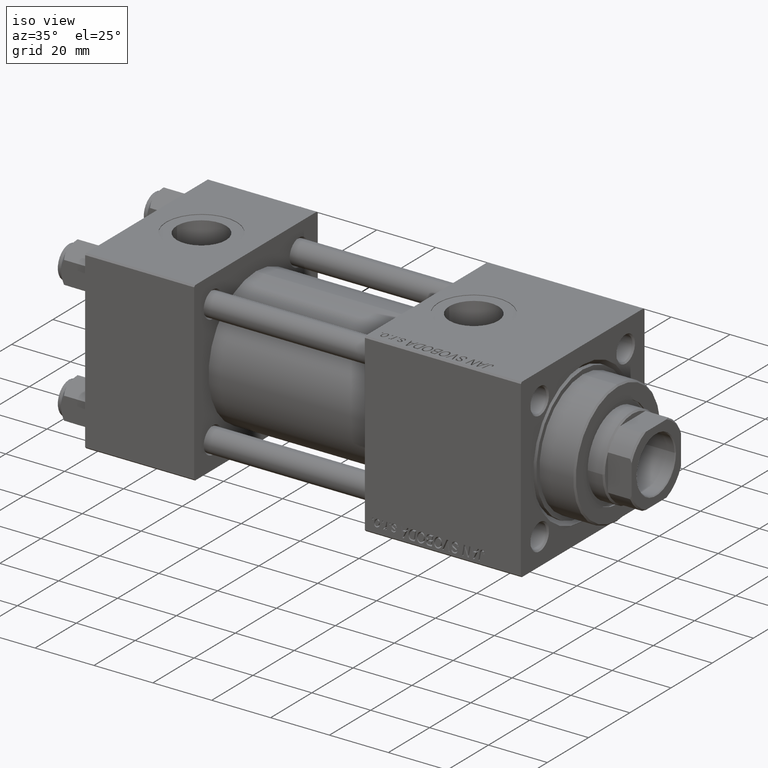
[diagram: clean part render]
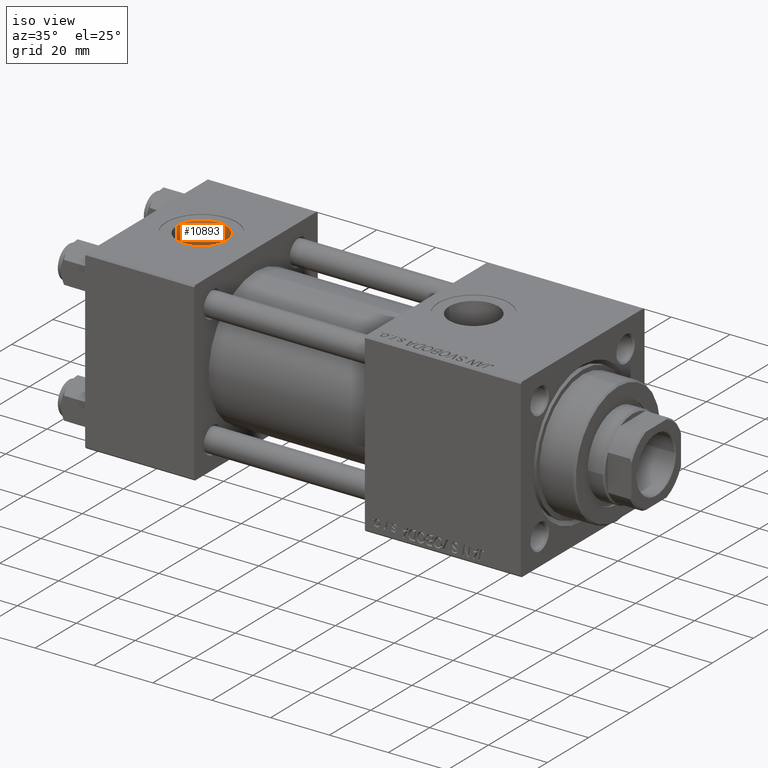
[diagram: same view with one face highlighted and labeled with its STEP entity id]
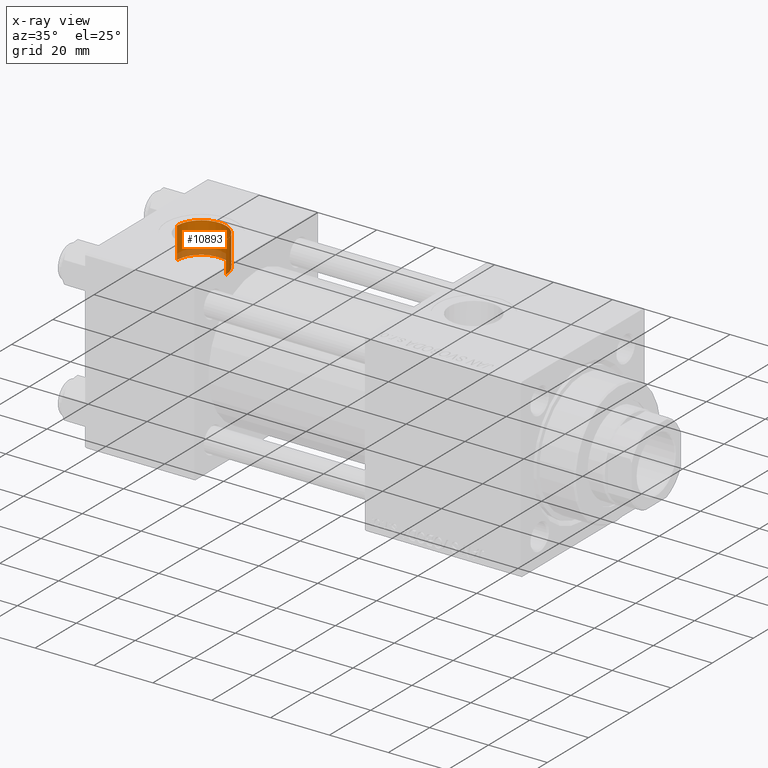
[diagram: x-ray of the same camera — body ghosted, the highlighted face saturated]
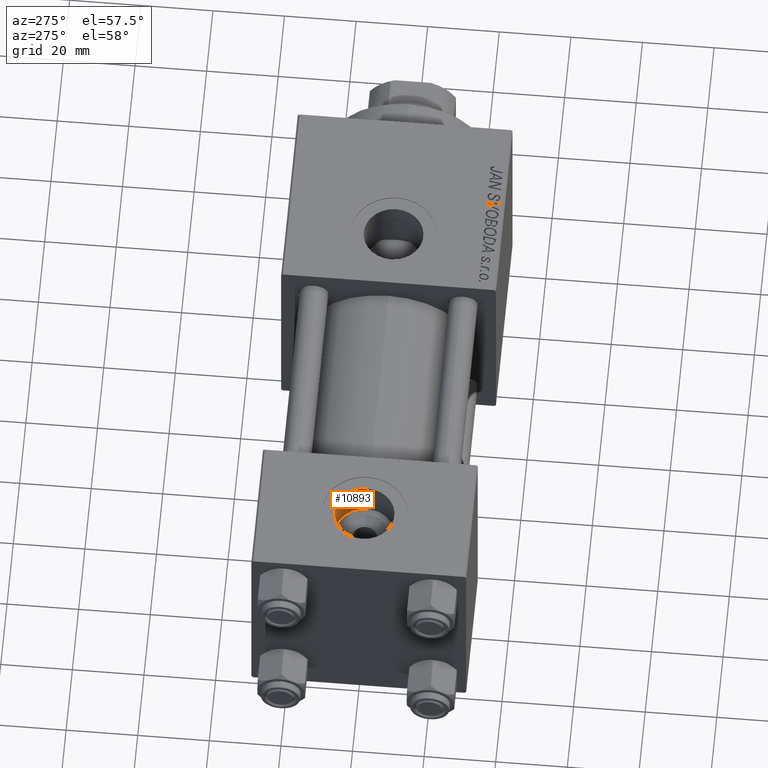
[diagram: same view with one face highlighted and labeled with its STEP entity id]
A machine part, iso view. The second image highlights one B-rep face of the part: STEP entity #10893.
The next image is the same camera in x-ray: the body ghosted, the highlighted face saturated — about 17% of this face is hidden behind the body in this view.
A second angle (auxiliary view) of the same face is appended — the face is thin or edge-on in the first view.
In plain terms, the highlighted cylindrical surface (edge-blend (fillet) strip) has radius 8.33 mm, axis along (0, 0, 1).
Its self-contained STEP definition (entity closure, byte-faithful):
#820 = EDGE_CURVE ( 'NONE', #7559, #5655, #34775, .T. ) ;
#1232 = ORIENTED_EDGE ( 'NONE', *, *, #8537, .F. ) ;
#1854 = ORIENTED_EDGE ( 'NONE', *, *, #25690, .T. ) ;
#3134 = VERTEX_POINT ( 'NONE', #11395 ) ;
#3558 = CARTESIAN_POINT ( 'NONE',  ( 26.82999999999999829, -3.469446951953614978E-15, 19.19999999999999574 ) ) ;
#5338 = DIRECTION ( 'NONE',  ( 1.000000000000000000, 0.000000000000000000, 0.000000000000000000 ) ) ;
#5505 = ORIENTED_EDGE ( 'NONE', *, *, #33955, .F. ) ;
#5655 = VERTEX_POINT ( 'NONE', #35344 ) ;
#6027 = ORIENTED_EDGE ( 'NONE', *, *, #820, .T. ) ;
#7559 = VERTEX_POINT ( 'NONE', #22230 ) ;
#7852 = DIRECTION ( 'NONE',  ( -0.000000000000000000, -0.000000000000000000, 1.000000000000000000 ) ) ;
#8029 = CARTESIAN_POINT ( 'NONE',  ( 10.16999999999999638, -2.449316168263869821E-15, 19.19999999999999574 ) ) ;
#8537 = EDGE_CURVE ( 'NONE', #7559, #18481, #9534, .T. ) ;
#9534 = CIRCLE ( 'NONE', #45197, 8.330000000000000071 ) ;
#10893 = ADVANCED_FACE ( 'NONE', ( #48834 ), #36668, .F. ) ;
#11395 = CARTESIAN_POINT ( 'NONE',  ( 10.16999999999999638, -2.449316168263869821E-15, 29.79999999999999716 ) ) ;
#13108 = EDGE_LOOP ( 'NONE', ( #5505, #1232, #6027, #1854 ) ) ;
#18481 = VERTEX_POINT ( 'NONE', #22887 ) ;
#22230 = CARTESIAN_POINT ( 'NONE',  ( 26.82999999999999829, -3.469446951953614978E-15, 19.19999999999999574 ) ) ;
#22887 = CARTESIAN_POINT ( 'NONE',  ( 10.16999999999999638, -2.449316168263869821E-15, 19.19999999999999574 ) ) ;
#23025 = VECTOR ( 'NONE', #25290, 1000.000000000000000 ) ;
#25290 = DIRECTION ( 'NONE',  ( -0.000000000000000000, -0.000000000000000000, 1.000000000000000000 ) ) ;
#25690 = EDGE_CURVE ( 'NONE', #5655, #3134, #30855, .T. ) ;
#27331 = LINE ( 'NONE', #8029, #23025 ) ;
#27589 = AXIS2_PLACEMENT_3D ( 'NONE', #32994, #40376, #5338 ) ;
#29527 = DIRECTION ( 'NONE',  ( -0.000000000000000000, -0.000000000000000000, 1.000000000000000000 ) ) ;
#30855 = CIRCLE ( 'NONE', #27589, 8.330000000000000071 ) ;
#32994 = CARTESIAN_POINT ( 'NONE',  ( 18.50000000000000000, -3.469446951953614978E-15, 29.79999999999999716 ) ) ;
#33689 = DIRECTION ( 'NONE',  ( 0.000000000000000000, 0.000000000000000000, 1.000000000000000000 ) ) ;
#33955 = EDGE_CURVE ( 'NONE', #18481, #3134, #27331, .T. ) ;
#34352 = VECTOR ( 'NONE', #7852, 1000.000000000000000 ) ;
#34775 = LINE ( 'NONE', #3558, #34352 ) ;
#35344 = CARTESIAN_POINT ( 'NONE',  ( 26.82999999999999829, -3.469446951953614978E-15, 29.79999999999999716 ) ) ;
#36524 = DIRECTION ( 'NONE',  ( 1.000000000000000000, 0.000000000000000000, 0.000000000000000000 ) ) ;
#36668 = CYLINDRICAL_SURFACE ( 'NONE', #47541, 8.330000000000000071 ) ;
#40376 = DIRECTION ( 'NONE',  ( 0.000000000000000000, 0.000000000000000000, 1.000000000000000000 ) ) ;
#41568 = CARTESIAN_POINT ( 'NONE',  ( 18.50000000000000000, -3.469446951953614978E-15, 19.19999999999999574 ) ) ;
#44535 = DIRECTION ( 'NONE',  ( 1.000000000000000000, 0.000000000000000000, 0.000000000000000000 ) ) ;
#45029 = CARTESIAN_POINT ( 'NONE',  ( 18.50000000000000000, -3.469446951953614978E-15, 19.19999999999999574 ) ) ;
#45197 = AXIS2_PLACEMENT_3D ( 'NONE', #41568, #33689, #36524 ) ;
#47541 = AXIS2_PLACEMENT_3D ( 'NONE', #45029, #29527, #44535 ) ;
#48834 = FACE_OUTER_BOUND ( 'NONE', #13108, .T. ) ;